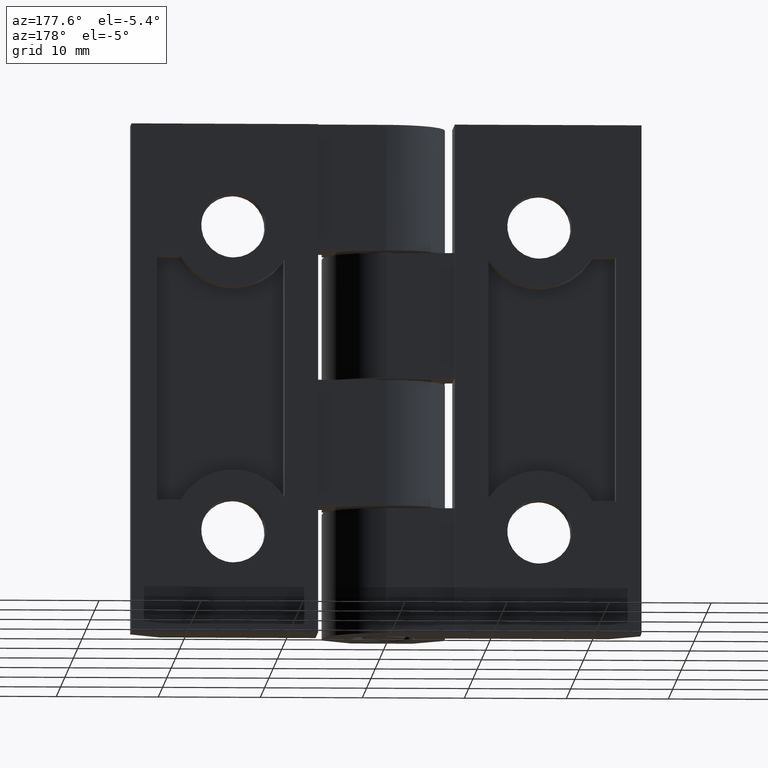
[diagram: clean part render]
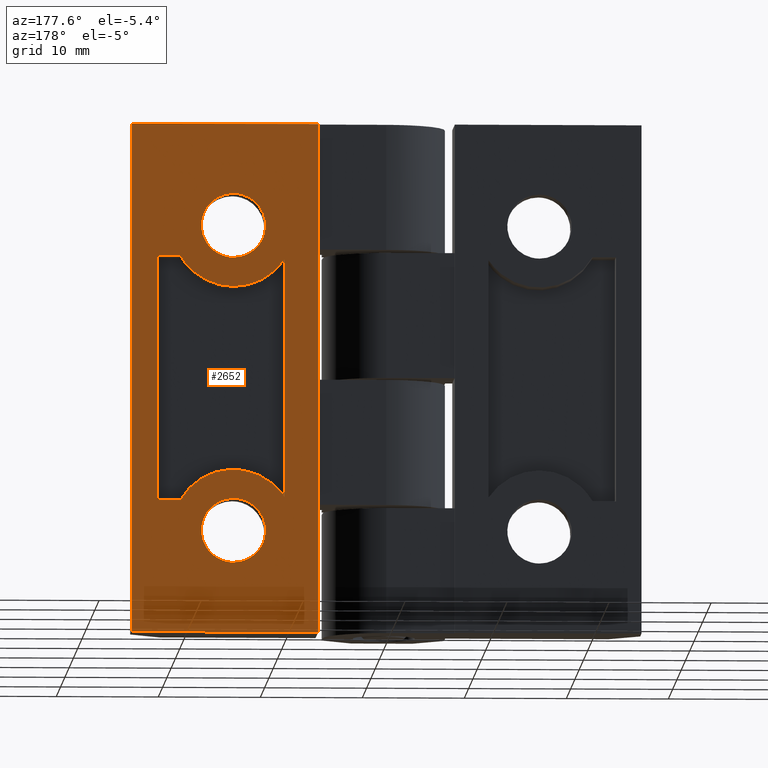
[diagram: same view with one face highlighted and labeled with its STEP entity id]
A machine part, auxiliary view. The second image highlights one B-rep face of the part: STEP entity #2652.
In plain terms, the highlighted face is a freeform B-spline surface patch.
Its self-contained STEP definition (entity closure, byte-faithful):
#626=CARTESIAN_POINT('',(18.129429528219671,6.500000308733441,39.640584707488081));
#627=VERTEX_POINT('',#626);
#633=CARTESIAN_POINT('',(15.000000712461651,6.500000308733441,36.850001037819311));
#634=VERTEX_POINT('',#633);
#635=CARTESIAN_POINT('',(18.129429528219671,6.500000308733441,39.640584707488081));
#636=CARTESIAN_POINT('',(17.808928949005580,6.500000308733441,36.850001037819311));
#637=CARTESIAN_POINT('',(15.000000712461651,6.500000308733441,36.850001037819311));
#645=(BOUNDED_CURVE()B_SPLINE_CURVE(2,(#635,#636,#637),.UNSPECIFIED.,.F.,.U.)B_SPLINE_CURVE_WITH_KNOTS((3,3),(0.269767755888942,0.500000000000000),.UNSPECIFIED.)CURVE()GEOMETRIC_REPRESENTATION_ITEM()RATIONAL_B_SPLINE_CURVE((0.957343736436336,0.730266147790671,1.0))REPRESENTATION_ITEM(''));
#646=EDGE_CURVE('',#627,#634,#645,.T.);
#648=CARTESIAN_POINT('',(11.855875255397430,6.500000308733441,39.807698646318983));
#649=VERTEX_POINT('',#648);
#650=CARTESIAN_POINT('',(15.000000712461651,6.500000308733441,36.850001037819311));
#651=CARTESIAN_POINT('',(12.036776359954345,6.500000308733442,36.850001037819311));
#652=CARTESIAN_POINT('',(11.855875255397438,6.500000308733442,39.807698646318983));
#660=(BOUNDED_CURVE()B_SPLINE_CURVE(2,(#650,#651,#652),.UNSPECIFIED.,.F.,.U.)B_SPLINE_CURVE_WITH_KNOTS((3,3),(0.500000000000000,0.739332929159135),.UNSPECIFIED.)CURVE()GEOMETRIC_REPRESENTATION_ITEM()RATIONAL_B_SPLINE_CURVE((1.0,0.719604032042116,0.976071970770403))REPRESENTATION_ITEM(''));
#661=EDGE_CURVE('',#634,#649,#660,.T.);
#756=CARTESIAN_POINT('',(15.000000712461651,6.500000308733441,43.150002761976680));
#757=VERTEX_POINT('',#756);
#758=CARTESIAN_POINT('',(11.855875255397436,6.500000308733441,39.807698646318983));
#759=CARTESIAN_POINT('',(11.849999850382970,6.500000308733441,39.903760366907839));
#760=CARTESIAN_POINT('',(11.849999850382970,6.500000308733441,40.000001899898002));
#761=CARTESIAN_POINT('',(11.849999850382968,6.500000308733441,43.150002761976680));
#762=CARTESIAN_POINT('',(15.000000712461651,6.500000308733441,43.150002761976680));
#770=(BOUNDED_CURVE()B_SPLINE_CURVE(2,(#758,#759,#760,#761,#762),.UNSPECIFIED.,.F.,.U.)B_SPLINE_CURVE_WITH_KNOTS((3,2,3),(0.739332929159136,0.750000000000000,1.0),.UNSPECIFIED.)CURVE()GEOMETRIC_REPRESENTATION_ITEM()RATIONAL_B_SPLINE_CURVE((0.976071970770405,0.987502749144433,1.0,0.707106781186547,1.0))REPRESENTATION_ITEM(''));
#771=EDGE_CURVE('',#649,#757,#770,.T.);
#773=CARTESIAN_POINT('',(15.000000712461651,6.500000308733441,43.150002761976680));
#774=CARTESIAN_POINT('',(18.150001574540330,6.500000308733441,43.150002761976680));
#775=CARTESIAN_POINT('',(18.150001574540330,6.500000308733441,40.000001899898002));
#776=CARTESIAN_POINT('',(18.150001574540330,6.500000308733442,39.819704560110175));
#777=CARTESIAN_POINT('',(18.129429528219671,6.500000308733441,39.640584707488081));
#785=(BOUNDED_CURVE()B_SPLINE_CURVE(2,(#773,#774,#775,#776,#777),.UNSPECIFIED.,.F.,.U.)B_SPLINE_CURVE_WITH_KNOTS((3,2,3),(0.0,0.250000000000000,0.269767755888942),.UNSPECIFIED.)CURVE()GEOMETRIC_REPRESENTATION_ITEM()RATIONAL_B_SPLINE_CURVE((1.0,0.707106781186547,1.0,0.976840633395876,0.957343736436336))REPRESENTATION_ITEM(''));
#786=EDGE_CURVE('',#757,#627,#785,.T.);
#954=CARTESIAN_POINT('',(18.129429528219671,6.500000308733441,9.640584707488163));
#955=VERTEX_POINT('',#954);
#961=CARTESIAN_POINT('',(15.000000712461651,6.500000308733441,6.850001037819396));
#962=VERTEX_POINT('',#961);
#963=CARTESIAN_POINT('',(18.129429528219664,6.500000308733441,9.640584707488163));
#964=CARTESIAN_POINT('',(17.808928949005576,6.500000308733442,6.850001037819396));
#965=CARTESIAN_POINT('',(15.000000712461651,6.500000308733441,6.850001037819396));
#973=(BOUNDED_CURVE()B_SPLINE_CURVE(2,(#963,#964,#965),.UNSPECIFIED.,.F.,.U.)B_SPLINE_CURVE_WITH_KNOTS((3,3),(0.269767755888942,0.500000000000000),.UNSPECIFIED.)CURVE()GEOMETRIC_REPRESENTATION_ITEM()RATIONAL_B_SPLINE_CURVE((0.957343736436335,0.730266147790671,1.0))REPRESENTATION_ITEM(''));
#974=EDGE_CURVE('',#955,#962,#973,.T.);
#976=CARTESIAN_POINT('',(11.855875255397430,6.500000308733441,9.807698646319064));
#977=VERTEX_POINT('',#976);
#978=CARTESIAN_POINT('',(15.000000712461651,6.500000308733441,6.850001037819396));
#979=CARTESIAN_POINT('',(12.036776359954308,6.500000308733439,6.850001037819396));
#980=CARTESIAN_POINT('',(11.855875255397432,6.500000308733441,9.807698646319064));
#988=(BOUNDED_CURVE()B_SPLINE_CURVE(2,(#978,#979,#980),.UNSPECIFIED.,.F.,.U.)B_SPLINE_CURVE_WITH_KNOTS((3,3),(0.500000000000000,0.739332929159137),.UNSPECIFIED.)CURVE()GEOMETRIC_REPRESENTATION_ITEM()RATIONAL_B_SPLINE_CURVE((1.0,0.719604032042113,0.976071970770408))REPRESENTATION_ITEM(''));
#989=EDGE_CURVE('',#962,#977,#988,.T.);
#1084=CARTESIAN_POINT('',(15.000000712461651,6.500000308733441,13.150002761976770));
#1085=VERTEX_POINT('',#1084);
#1086=CARTESIAN_POINT('',(11.855875255397429,6.500000308733442,9.807698646319064));
#1087=CARTESIAN_POINT('',(11.849999850382966,6.500000308733440,9.903760366907926));
#1088=CARTESIAN_POINT('',(11.849999850382970,6.500000308733441,10.000001899898081));
#1089=CARTESIAN_POINT('',(11.849999850382968,6.500000308733441,13.150002761976765));
#1090=CARTESIAN_POINT('',(15.000000712461651,6.500000308733441,13.150002761976770));
#1098=(BOUNDED_CURVE()B_SPLINE_CURVE(2,(#1086,#1087,#1088,#1089,#1090),.UNSPECIFIED.,.F.,.U.)B_SPLINE_CURVE_WITH_KNOTS((3,2,3),(0.739332929159136,0.750000000000000,1.0),.UNSPECIFIED.)CURVE()GEOMETRIC_REPRESENTATION_ITEM()RATIONAL_B_SPLINE_CURVE((0.976071970770405,0.987502749144433,1.0,0.707106781186547,1.0))REPRESENTATION_ITEM(''));
#1099=EDGE_CURVE('',#977,#1085,#1098,.T.);
#1101=CARTESIAN_POINT('',(15.000000712461651,6.500000308733441,13.150002761976770));
#1102=CARTESIAN_POINT('',(18.150001574540330,6.500000308733441,13.150002761976765));
#1103=CARTESIAN_POINT('',(18.150001574540330,6.500000308733441,10.000001899898081));
#1104=CARTESIAN_POINT('',(18.150001574540330,6.500000308733441,9.819704560110255));
#1105=CARTESIAN_POINT('',(18.129429528219671,6.500000308733441,9.640584707488163));
#1113=(BOUNDED_CURVE()B_SPLINE_CURVE(2,(#1101,#1102,#1103,#1104,#1105),.UNSPECIFIED.,.F.,.U.)B_SPLINE_CURVE_WITH_KNOTS((3,2,3),(0.0,0.250000000000000,0.269767755888942),.UNSPECIFIED.)CURVE()GEOMETRIC_REPRESENTATION_ITEM()RATIONAL_B_SPLINE_CURVE((1.0,0.707106781186547,1.0,0.976840633395876,0.957343736436336))REPRESENTATION_ITEM(''));
#1114=EDGE_CURVE('',#1085,#955,#1113,.T.);
#1698=CARTESIAN_POINT('',(20.196152669510649,6.500000308733430,13.000000617466339));
#1699=VERTEX_POINT('',#1698);
#1700=CARTESIAN_POINT('',(22.500000356230750,6.500000308733441,13.000000617466300));
#1701=VERTEX_POINT('',#1700);
#1702=CARTESIAN_POINT('',(20.196152669510649,6.500000308733430,13.000000617466339));
#1703=CARTESIAN_POINT('',(22.500000356230750,6.500000308733441,13.000000617466300));
#1704=QUASI_UNIFORM_CURVE('',1,(#1702,#1703),.UNSPECIFIED.,.F.,.U.);
#1705=EDGE_CURVE('',#1699,#1701,#1704,.T.);
#1735=CARTESIAN_POINT('',(9.999999762512800,6.500000308733430,13.316625422862840));
#1736=VERTEX_POINT('',#1735);
#1737=CARTESIAN_POINT('',(20.196152669510639,6.500000308733430,13.000000617466331));
#1738=CARTESIAN_POINT('',(18.525642002891331,6.500000308733430,15.893409966636767));
#1739=CARTESIAN_POINT('',(15.186230397613460,6.500000308733430,15.997109916931960));
#1740=CARTESIAN_POINT('',(11.846818792335576,6.500000308733430,16.100809867227156));
#1741=CARTESIAN_POINT('',(9.999999762512800,6.500000308733430,13.316625422862840));
#1749=(BOUNDED_CURVE()B_SPLINE_CURVE(2,(#1737,#1738,#1739,#1740,#1741),.UNSPECIFIED.,.F.,.U.)B_SPLINE_CURVE_WITH_KNOTS((3,2,3),(0.0,0.500000000000000,1.0),.UNSPECIFIED.)CURVE()GEOMETRIC_REPRESENTATION_ITEM()RATIONAL_B_SPLINE_CURVE((1.0,0.873681617552269,1.0,0.873681617552269,1.0))REPRESENTATION_ITEM(''));
#1750=EDGE_CURVE('',#1699,#1736,#1749,.T.);
#1767=CARTESIAN_POINT('',(9.999999762513809,6.500000308733430,36.683376952009297));
#1768=VERTEX_POINT('',#1767);
#1769=CARTESIAN_POINT('',(9.999999762513809,6.500000308733430,36.683376952009297));
#1770=CARTESIAN_POINT('',(9.999999762512800,6.500000308733430,13.316625422862840));
#1771=QUASI_UNIFORM_CURVE('',1,(#1769,#1770),.UNSPECIFIED.,.F.,.U.);
#1772=EDGE_CURVE('',#1768,#1736,#1771,.T.);
#1798=CARTESIAN_POINT('',(20.196152669510798,6.500000308733430,37.000001757405151));
#1799=VERTEX_POINT('',#1798);
#1800=CARTESIAN_POINT('',(9.999999762513815,6.500000308733430,36.683376952009297));
#1801=CARTESIAN_POINT('',(11.846818792335631,6.500000308733430,33.899192507644365));
#1802=CARTESIAN_POINT('',(15.186230397613491,6.500000308733430,34.002892457939581));
#1803=CARTESIAN_POINT('',(18.525642002891360,6.500000308733430,34.106592408234810));
#1804=CARTESIAN_POINT('',(20.196152669510798,6.500000308733430,37.000001757405151));
#1812=(BOUNDED_CURVE()B_SPLINE_CURVE(2,(#1800,#1801,#1802,#1803,#1804),.UNSPECIFIED.,.F.,.U.)B_SPLINE_CURVE_WITH_KNOTS((3,2,3),(0.0,0.500000000000000,1.0),.UNSPECIFIED.)CURVE()GEOMETRIC_REPRESENTATION_ITEM()RATIONAL_B_SPLINE_CURVE((1.0,0.873681617552270,1.0,0.873681617552270,1.0))REPRESENTATION_ITEM(''));
#1813=EDGE_CURVE('',#1768,#1799,#1812,.T.);
#1830=CARTESIAN_POINT('',(22.500000356230750,6.500000308733430,37.000001757405151));
#1831=VERTEX_POINT('',#1830);
#1832=CARTESIAN_POINT('',(22.500000356230750,6.500000308733430,37.000001757405151));
#1833=CARTESIAN_POINT('',(20.196152669510798,6.500000308733430,37.000001757405151));
#1834=QUASI_UNIFORM_CURVE('',1,(#1832,#1833),.UNSPECIFIED.,.F.,.U.);
#1835=EDGE_CURVE('',#1831,#1799,#1834,.T.);
#1852=CARTESIAN_POINT('',(22.500000356230750,6.500000308733441,13.000000617466300));
#1853=CARTESIAN_POINT('',(22.500000356230750,6.500000308733430,37.000001757405151));
#1854=QUASI_UNIFORM_CURVE('',1,(#1852,#1853),.UNSPECIFIED.,.F.,.U.);
#1855=EDGE_CURVE('',#1701,#1831,#1854,.T.);
#2138=CARTESIAN_POINT('',(6.700001793634170,6.500000308733441,0.0));
#2139=VERTEX_POINT('',#2138);
#2145=CARTESIAN_POINT('',(25.000002662837449,6.500000308733441,0.0));
#2146=VERTEX_POINT('',#2145);
#2147=CARTESIAN_POINT('',(25.000002662837449,6.500000308733441,0.0));
#2148=CARTESIAN_POINT('',(6.700001793634170,6.500000308733441,0.0));
#2149=QUASI_UNIFORM_CURVE('',1,(#2147,#2148),.UNSPECIFIED.,.F.,.U.);
#2150=EDGE_CURVE('',#2146,#2139,#2149,.T.);
#2181=CARTESIAN_POINT('',(25.000002662837449,6.500000308733441,50.000002374872601));
#2182=VERTEX_POINT('',#2181);
#2188=CARTESIAN_POINT('',(6.700001793634170,6.500000308733441,50.000002374872601));
#2189=VERTEX_POINT('',#2188);
#2190=CARTESIAN_POINT('',(25.000002662837449,6.500000308733441,50.000002374872601));
#2191=CARTESIAN_POINT('',(6.700001793634170,6.500000308733441,50.000002374872601));
#2192=QUASI_UNIFORM_CURVE('',1,(#2190,#2191),.UNSPECIFIED.,.F.,.U.);
#2193=EDGE_CURVE('',#2182,#2189,#2192,.T.);
#2298=CARTESIAN_POINT('',(6.700001793634170,6.500000308733441,50.000002374872601));
#2299=CARTESIAN_POINT('',(6.700001793634170,6.500000308733441,0.0));
#2300=QUASI_UNIFORM_CURVE('',1,(#2298,#2299),.UNSPECIFIED.,.F.,.U.);
#2301=EDGE_CURVE('',#2189,#2139,#2300,.T.);
#2319=CARTESIAN_POINT('',(25.000002662837449,6.500000308733441,50.000002374872601));
#2320=CARTESIAN_POINT('',(25.000002662837449,6.500000308733441,0.0));
#2321=QUASI_UNIFORM_CURVE('',1,(#2319,#2320),.UNSPECIFIED.,.F.,.U.);
#2322=EDGE_CURVE('',#2182,#2146,#2321,.T.);
#2621=CARTESIAN_POINT('',(5.785916679279560,6.500000308733441,52.497504274044793));
#2622=CARTESIAN_POINT('',(5.785916679279560,6.500000308733441,-2.497501452137318));
#2623=CARTESIAN_POINT('',(25.914086795503518,6.500000308733441,52.497504274044793));
#2624=CARTESIAN_POINT('',(25.914086795503518,6.500000308733441,-2.497501452137318));
#2625=B_SPLINE_SURFACE_WITH_KNOTS('',1,1,((#2621,#2623),(#2622,#2624)),.UNSPECIFIED.,.F.,.F.,.U.,(2,2),(2,2),(0.0,54.995005726182100),(0.0,20.128170116223959),.UNSPECIFIED.);
#2626=ORIENTED_EDGE('',*,*,#2150,.T.);
#2627=ORIENTED_EDGE('',*,*,#2301,.F.);
#2628=ORIENTED_EDGE('',*,*,#2193,.F.);
#2629=ORIENTED_EDGE('',*,*,#2322,.T.);
#2630=EDGE_LOOP('',(#2626,#2627,#2628,#2629));
#2631=FACE_OUTER_BOUND('',#2630,.T.);
#2632=ORIENTED_EDGE('',*,*,#1855,.T.);
#2633=ORIENTED_EDGE('',*,*,#1835,.T.);
#2634=ORIENTED_EDGE('',*,*,#1813,.F.);
#2635=ORIENTED_EDGE('',*,*,#1772,.T.);
#2636=ORIENTED_EDGE('',*,*,#1750,.F.);
#2637=ORIENTED_EDGE('',*,*,#1705,.T.);
#2638=EDGE_LOOP('',(#2632,#2633,#2634,#2635,#2636,#2637));
#2639=FACE_BOUND('',#2638,.T.);
#2640=ORIENTED_EDGE('',*,*,#989,.F.);
#2641=ORIENTED_EDGE('',*,*,#974,.F.);
#2642=ORIENTED_EDGE('',*,*,#1114,.F.);
#2643=ORIENTED_EDGE('',*,*,#1099,.F.);
#2644=EDGE_LOOP('',(#2640,#2641,#2642,#2643));
#2645=FACE_BOUND('',#2644,.T.);
#2646=ORIENTED_EDGE('',*,*,#661,.F.);
#2647=ORIENTED_EDGE('',*,*,#646,.F.);
#2648=ORIENTED_EDGE('',*,*,#786,.F.);
#2649=ORIENTED_EDGE('',*,*,#771,.F.);
#2650=EDGE_LOOP('',(#2646,#2647,#2648,#2649));
#2651=FACE_BOUND('',#2650,.T.);
#2652=ADVANCED_FACE('',(#2631,#2639,#2645,#2651),#2625,.F.);